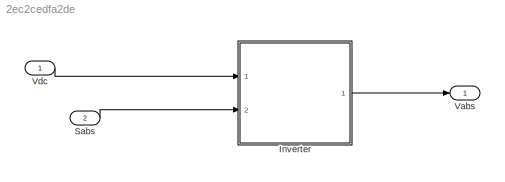
MODEL slx_2ec2cedfa2de
KIND model
CONFIG AbsTol = auto
CONFIG EnableMultiTasking = off
CONFIG FixedStep = auto
CONFIG MaxStep = auto
CONFIG MinStep = auto
CONFIG RelTol = 1e-3
CONFIG SampleTimeConstraint = Unconstrained
CONFIG SolverName = VariableStepAuto
CONFIG StartTime = 0.0
CONFIG StopTime = 10.0
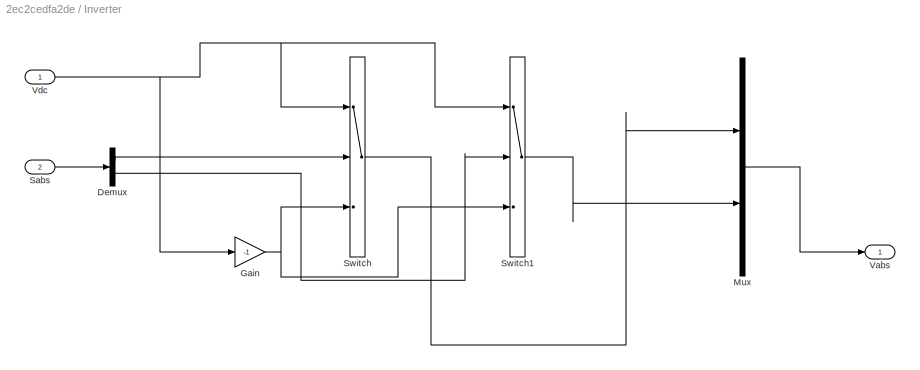
BLOCK [SubSystem] Inverter
  Ports = [2, 1]
  RequestExecContextInheritance = off
BLOCK [Demux] Inverter/Demux
  Outputs = 2
  Ports = [1, 2]
BLOCK [Gain] Inverter/Gain
  Gain = -1
BLOCK [Mux] Inverter/Mux
  DisplayOption = bar
  Inputs = 2
  Ports = [2, 1]
BLOCK [Inport] Inverter/Sabs
  Port = 2
BLOCK [Switch] Inverter/Switch
  Criteria = u2 > Threshold
  InputSameDT = off
  SaturateOnIntegerOverflow = off
BLOCK [Switch] Inverter/Switch1
  Criteria = u2 > Threshold
  InputSameDT = off
  SaturateOnIntegerOverflow = off
BLOCK [Outport] Inverter/Vabs
BLOCK [Inport] Inverter/Vdc
BLOCK [Inport] Sabs
  Port = 2
BLOCK [Outport] Vabs
BLOCK [Inport] Vdc
LINE Inverter/Demux:1 -> Inverter/Switch:2
LINE Inverter/Demux:2 -> Inverter/Switch1:2
NET Inverter/Gain:1 -> Inverter/Switch1:3, Inverter/Switch:3
LINE Inverter/Mux:1 -> Inverter/Vabs:1
LINE Inverter/Sabs:1 -> Inverter/Demux:1
LINE Inverter/Switch1:1 -> Inverter/Mux:2
LINE Inverter/Switch:1 -> Inverter/Mux:1
NET Inverter/Vdc:1 -> Inverter/Gain:1, Inverter/Switch1:1, Inverter/Switch:1
LINE Inverter:1 -> Vabs:1
LINE Sabs:1 -> Inverter:2
LINE Vdc:1 -> Inverter:1
note: NET lines group one-source signal fan-out (src -> all destinations, sorted); 1:1 wires keep LINE
